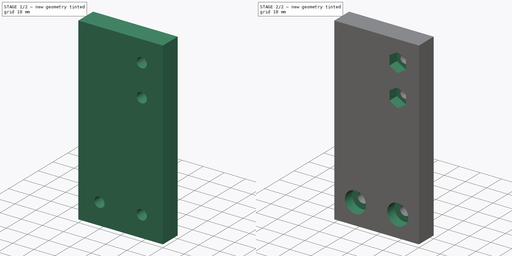
[diagram: build sequence overview — one tinted view per stage of 2, left to right]
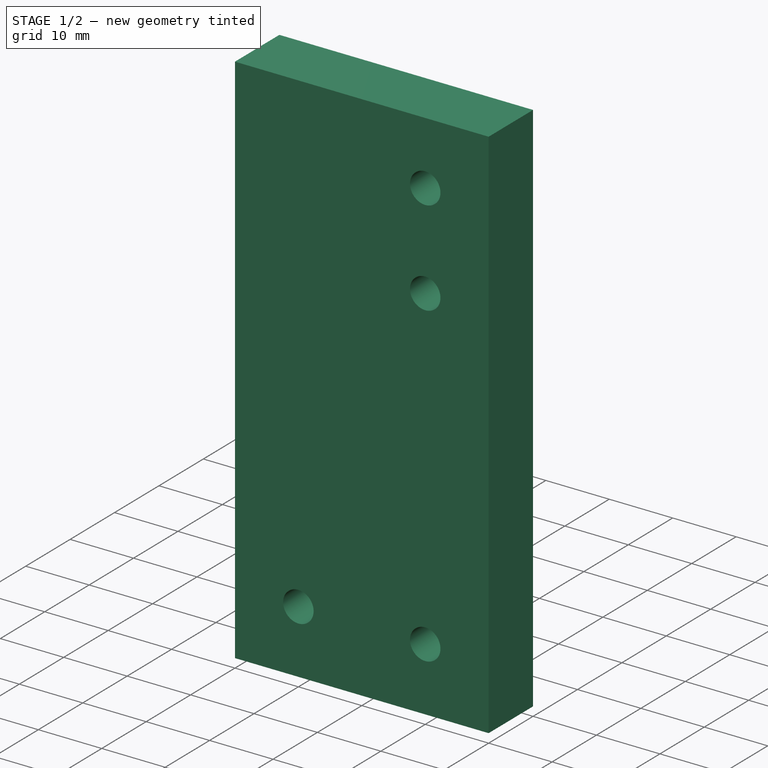
[diagram: stage 1 of 2 — iso view after this stage's code; geometry added in this stage tinted green]
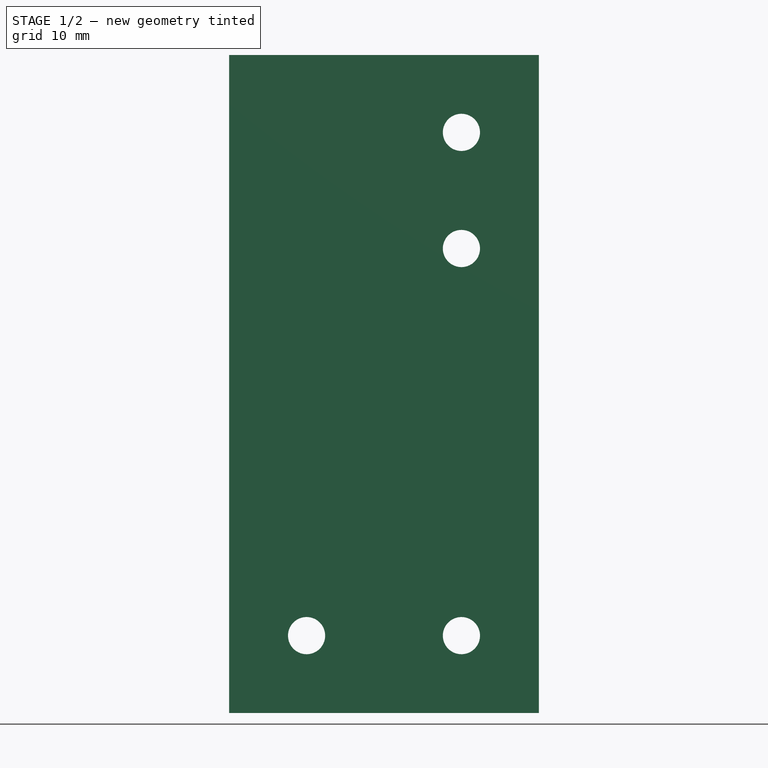
[diagram: stage 1 of 2 — front view after this stage's code; geometry added in this stage tinted green]
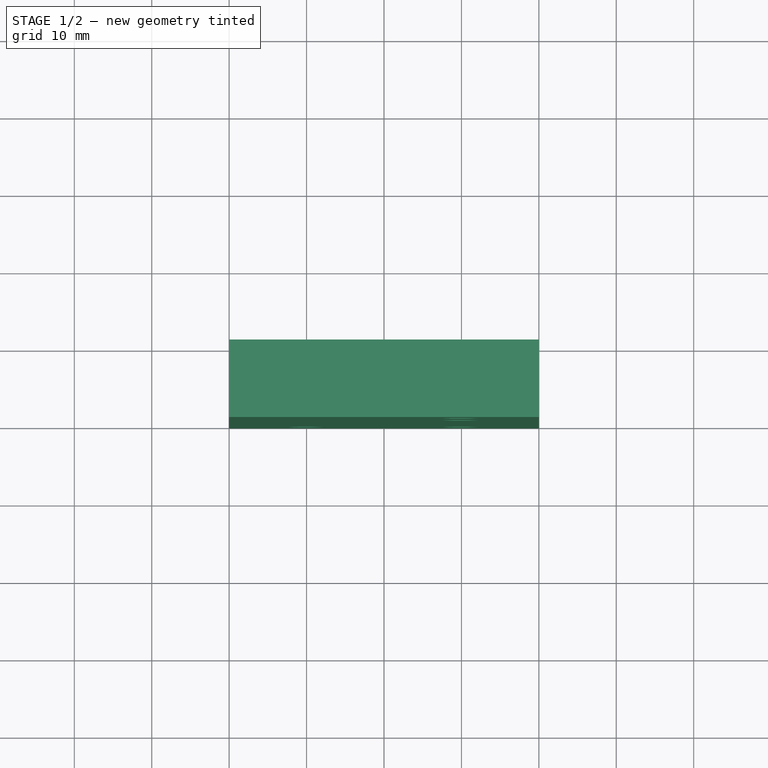
[diagram: stage 1 of 2 — top view after this stage's code; geometry added in this stage tinted green]
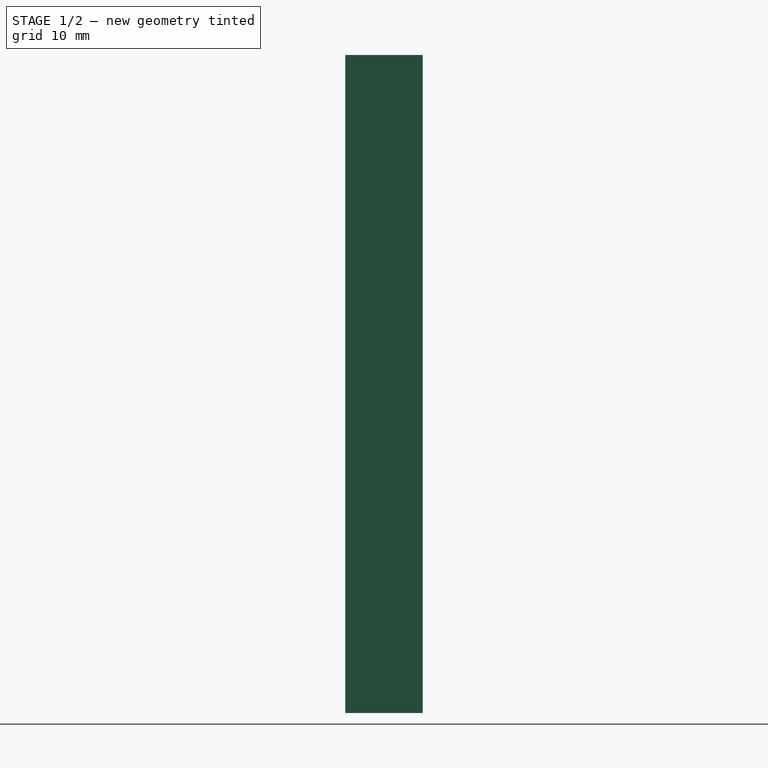
[diagram: stage 1 of 2 — right view after this stage's code; geometry added in this stage tinted green]
FCSTD DOCUMENT  (FreeCAD 0.20R29177 (Git))
Label: Chain Mount 2020
License: All rights reserved
LicenseURL: http://en.wikipedia.org/wiki/All_rights_reserved
objects: Sketcher::SketchObject×3, PartDesign::Pocket×2, PartDesign::Pad×1, PartDesign::Body×1
note: 10 computed .brp shape members not serialized (recipe doc carries the construction recipe); baked Part::Feature solids carry a one-line shape summary decoded from their .brp

FEATURE [Sketcher::SketchObject] Sketch
  FullyConstrained = true
  MapMode = 5
  Placement = pos=(0,0,0) rot=(1,0,0;1.5708rad)
  Support = -> [XZ_Plane]
  sketch-geometry (4):
    g0: LineSegment StartX=-20 StartY=42.5 StartZ=0 EndX=20 EndY=42.5 EndZ=0
    g1: LineSegment StartX=20 StartY=42.5 StartZ=0 EndX=20 EndY=-42.5 EndZ=0
    g2: LineSegment StartX=20 StartY=-42.5 StartZ=0 EndX=-20 EndY=-42.5 EndZ=0
    g3: LineSegment StartX=-20 StartY=-42.5 StartZ=0 EndX=-20 EndY=42.5 EndZ=0
  constraints (11):
    c: Coincident(g0,g1)
    c: Coincident(g1,g2)
    c: Coincident(g2,g3)
    c: Coincident(g3,g0)
    c: Horizontal(g0)
    c: Horizontal(g2)
    c: Vertical(g1)
    c: Vertical(g3)
    c: DistanceX(g0,g0) = 40
    c: DistanceY(g1,g0) = 85
    c: Symmetric(g2,g0,g-1)
FEATURE [PartDesign::Pad] Pad
  Direction = (0,-1,2e-16)
  Length = 10
  Length2 = 10
  Placement = pos=(0,0,0) rot=(1,0,0;1.5708rad)
  Profile = -> Sketch
  ReferenceAxis = -> Sketch [N_Axis]
  Type = 0
FEATURE [Sketcher::SketchObject] Sketch001
  FullyConstrained = true
  MapMode = 5
  Placement = pos=(0,-10,2.2e-15) rot=(1,0,0;1.5708rad)
  Support = -> [Pad]
  sketch-geometry (4):
    g0: Circle CenterX=-10 CenterY=-32.5 CenterZ=0 NormalX=0 NormalY=0 NormalZ=1 AngleXU=0 Radius=2.4
    g1: Circle CenterX=10 CenterY=-32.5 CenterZ=0 NormalX=0 NormalY=0 NormalZ=1 AngleXU=0 Radius=2.4
    g2: Circle CenterX=10 CenterY=32.5 CenterZ=0 NormalX=0 NormalY=0 NormalZ=1 AngleXU=0 Radius=2.4
    g3: Circle CenterX=10 CenterY=17.5 CenterZ=0 NormalX=0 NormalY=0 NormalZ=1 AngleXU=0 Radius=2.4
  constraints (11):
    c: Diameter(g2) = 4.8
    c: Diameter(g3) = 4.8
    c: Diameter(g1) = 4.8
    c: Diameter(g0) = 4.8
    c: DistanceY(g0,g-1) = 32.5
    c: DistanceX(g0,g1) = 20
    c: Symmetric(g0,g1,g-2)
    c: Vertical(g2,g3)
    c: DistanceY(g3,g2) = 15
    c: DistanceX(g-1,g3) = 10
    c: DistanceY(g-1,g3) = 17.5
FEATURE [PartDesign::Pocket] Pocket
  BaseFeature = -> Pad
  Direction = (0,1,-2e-16)
  Length = 10
  Length2 = 5
  Placement = pos=(0,0,0) rot=(1,0,0;1.5708rad)
  Profile = -> Sketch001
  ReferenceAxis = -> Sketch001 [N_Axis]
  Type = 0
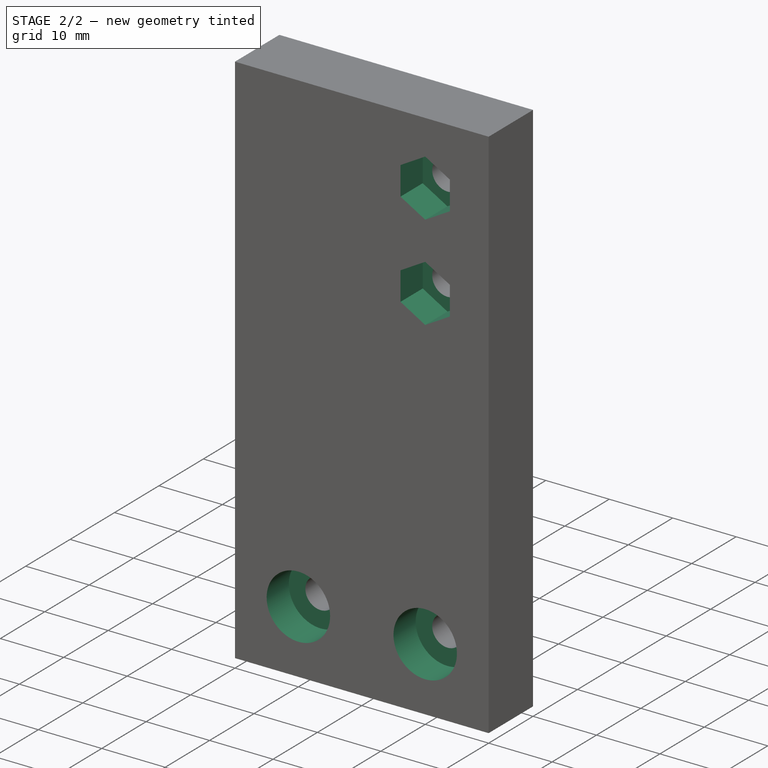
[diagram: stage 2 of 2 — iso view after this stage's code; geometry added in this stage tinted green]
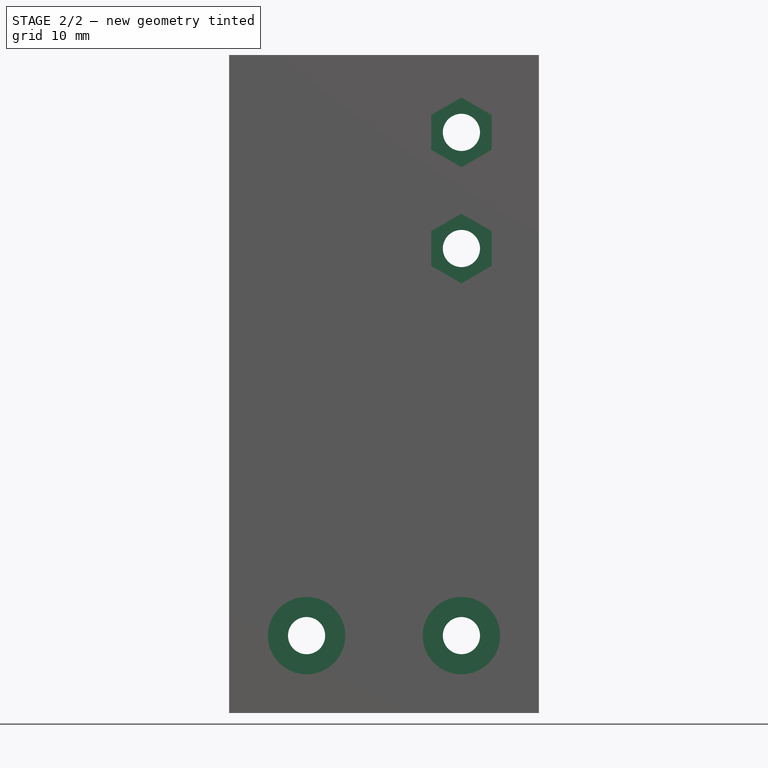
[diagram: stage 2 of 2 — front view after this stage's code; geometry added in this stage tinted green]
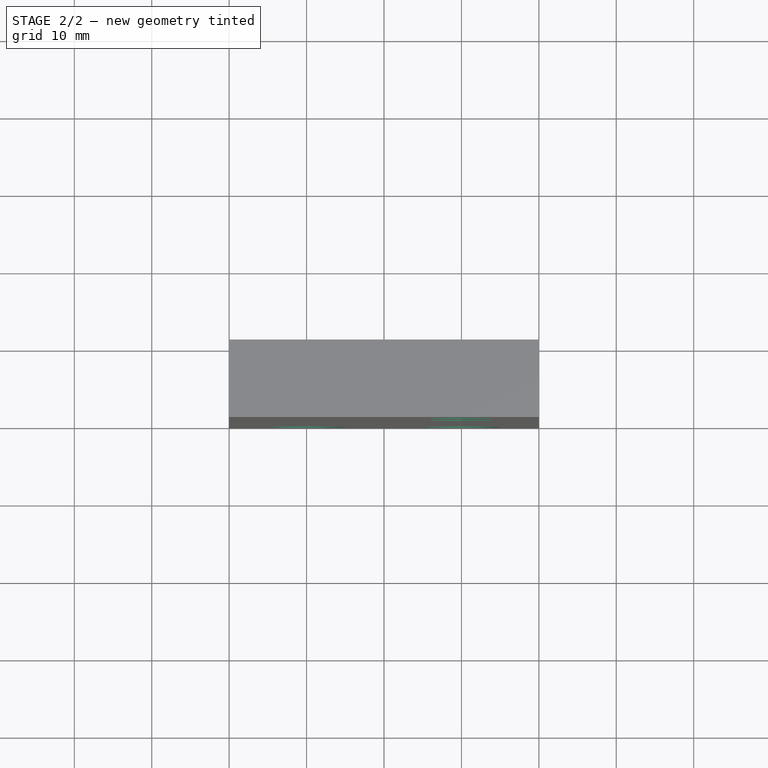
[diagram: stage 2 of 2 — top view after this stage's code; geometry added in this stage tinted green]
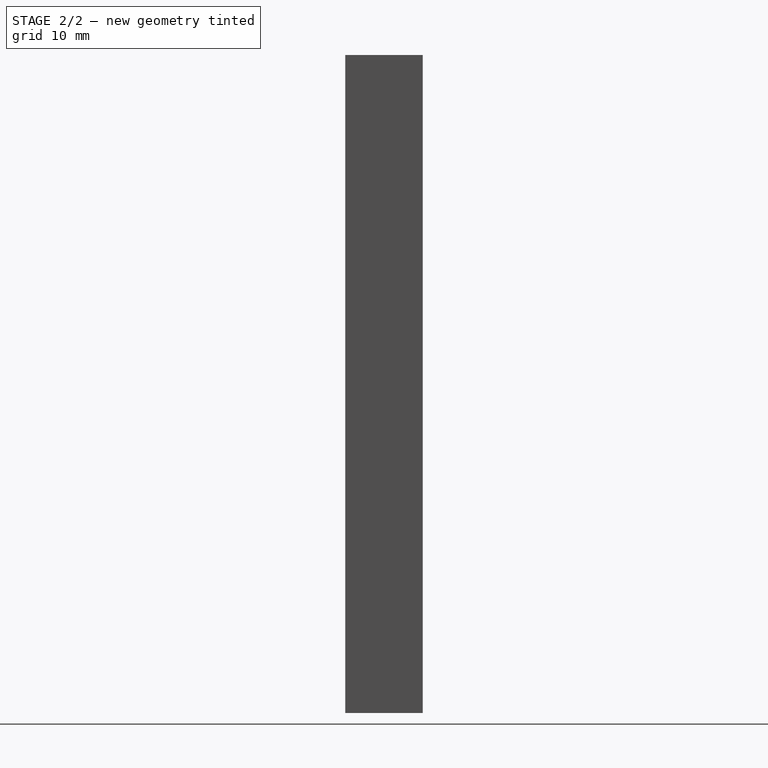
[diagram: stage 2 of 2 — right view after this stage's code; geometry added in this stage tinted green]
FEATURE [Sketcher::SketchObject] Sketch002
  FullyConstrained = true
  MapMode = 5
  Placement = pos=(0,-10,2.2e-15) rot=(1,0,0;1.5708rad)
  Support = -> [Pocket]
  sketch-geometry (16):
    g0: LineSegment StartX=13.8971 StartY=30.25 StartZ=0 EndX=13.8971 EndY=34.75 EndZ=0
    g1: LineSegment StartX=13.8971 StartY=34.75 StartZ=0 EndX=10 EndY=37 EndZ=0
    g2: LineSegment StartX=10 StartY=37 StartZ=0 EndX=6.10289 EndY=34.75 EndZ=0
    g3: LineSegment StartX=6.10289 StartY=34.75 StartZ=0 EndX=6.10289 EndY=30.25 EndZ=0
    g4: LineSegment StartX=6.10289 StartY=30.25 StartZ=0 EndX=10 EndY=28 EndZ=0
    g5: LineSegment StartX=10 StartY=28 StartZ=0 EndX=13.8971 EndY=30.25 EndZ=0
    g6: Circle CenterX=10 CenterY=32.5 CenterZ=0 NormalX=0 NormalY=0 NormalZ=1 AngleXU=0 Radius=4.5
    g7: LineSegment StartX=13.8971 StartY=15.25 StartZ=0 EndX=13.8971 EndY=19.75 EndZ=0
    g8: LineSegment StartX=13.8971 StartY=19.75 StartZ=0 EndX=10 EndY=22 EndZ=0
    g9: LineSegment StartX=10 StartY=22 StartZ=0 EndX=6.10289 EndY=19.75 EndZ=0
    g10: LineSegment StartX=6.10289 StartY=19.75 StartZ=0 EndX=6.10289 EndY=15.25 EndZ=0
    g11: LineSegment StartX=6.10289 StartY=15.25 StartZ=0 EndX=10 EndY=13 EndZ=0
    g12: LineSegment StartX=10 StartY=13 StartZ=0 EndX=13.8971 EndY=15.25 EndZ=0
    g13: Circle CenterX=10 CenterY=17.5 CenterZ=0 NormalX=0 NormalY=0 NormalZ=1 AngleXU=0 Radius=4.5
    g14: Circle CenterX=-10 CenterY=-32.5 CenterZ=0 NormalX=0 NormalY=0 NormalZ=1 AngleXU=0 Radius=5
    g15: Circle CenterX=10 CenterY=-32.5 CenterZ=0 NormalX=0 NormalY=0 NormalZ=1 AngleXU=0 Radius=5
  constraints (40):
    c: Coincident(g0,g1)
    c: Coincident(g1,g2)
    c: Coincident(g2,g3)
    c: Coincident(g3,g4)
    c: Coincident(g4,g5)
    c: Coincident(g5,g0)
    c: Equal(g0, g1-g5) x5
    c: PointOnObject(g0,g6)
    c: PointOnObject(g1,g6)
    c: PointOnObject(g2,g6)
    c: PointOnObject(g3,g6)
    c: PointOnObject(g4,g6)
    c: PointOnObject(g5,g6)
    c: DistanceY(g4,g1) = 9
    c: Vertical(g1,g6)
    c: Coincident(g7,g8)
    c: Coincident(g8,g9)
    c: Coincident(g9,g10)
    c: Coincident(g10,g11)
    c: Coincident(g11,g12)
    c: Coincident(g12,g7)
    c: Equal(g7, g8-g12) x5
    c: PointOnObject(g7,g13)
    c: PointOnObject(g8,g13)
    c: PointOnObject(g9,g13)
    c: PointOnObject(g10,g13)
    c: PointOnObject(g11,g13)
    c: PointOnObject(g12,g13)
    c: Vertical(g8,g13)
    c: DistanceY(g11,g8) = 9
    c: Vertical(g13,g6)
    c: DistanceY(g13,g6) = 15
    c: DistanceX(g-1,g13) = 10
    c: DistanceY(g-1,g13) = 17.5
    c: Diameter(g14) = 10
    c: Diameter(g15) = 10
    c: DistanceX(g14,g15) = 20
    c: Horizontal(g14,g15)
    c: DistanceY(g14,g-1) = 32.5
    c: DistanceX(g14,g-1) = 10
FEATURE [PartDesign::Pocket] Pocket001
  BaseFeature = -> Pocket
  Direction = (0,1,-2e-16)
  Length = 5
  Length2 = 5
  Placement = pos=(0,0,0) rot=(1,0,0;1.5708rad)
  Profile = -> Sketch002
  ReferenceAxis = -> Sketch002 [N_Axis]
  Type = 0
FEATURE [PartDesign::Body] Body
  Group = -> [Sketch,Pad,Sketch001,Pocket,Sketch002,Pocket001]
  Origin = -> Origin
  Tip = -> Pocket001
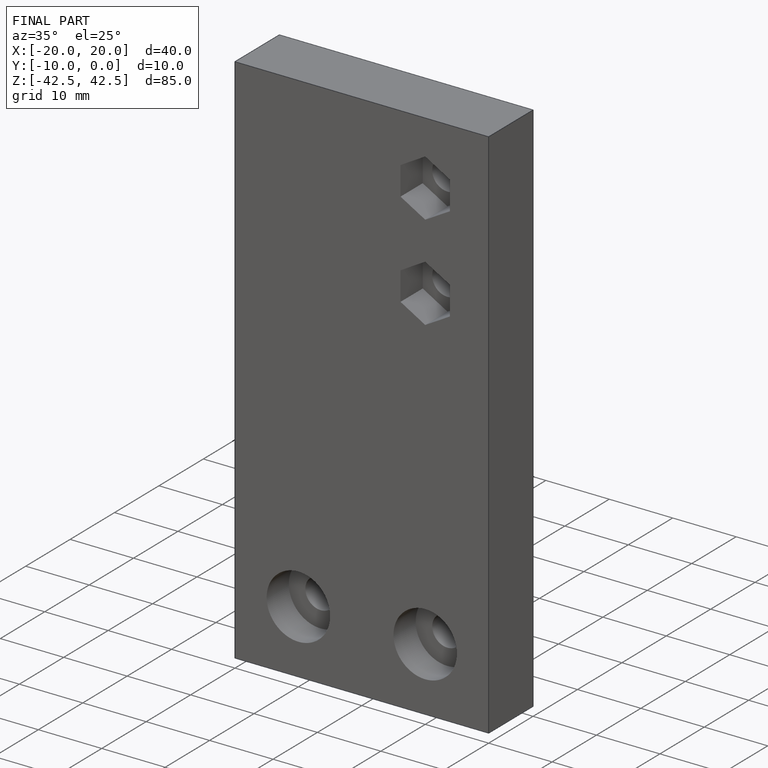
[diagram: finished part — iso view with bounding-box wireframe]
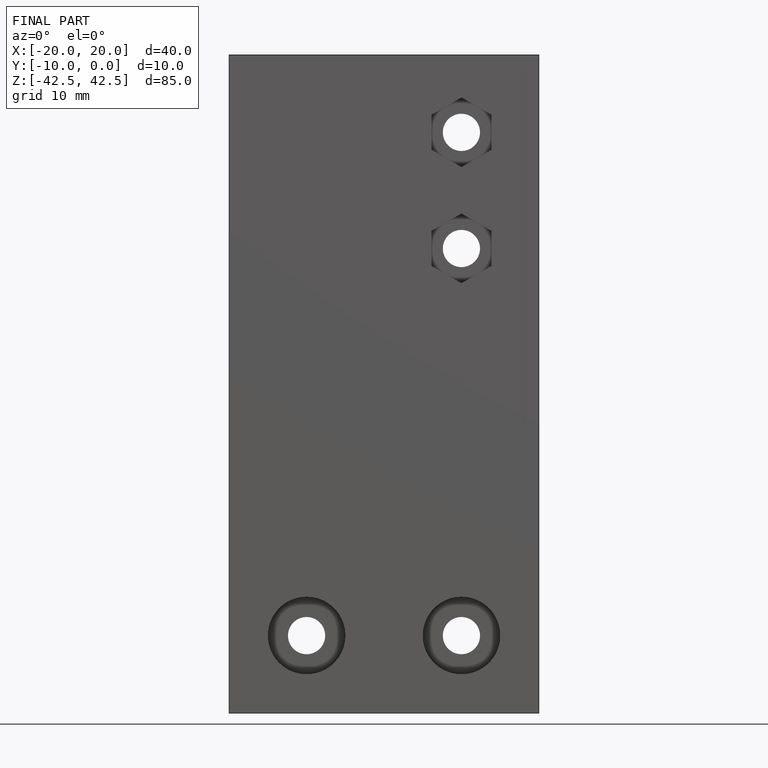
[diagram: finished part — front view with bounding-box wireframe]
